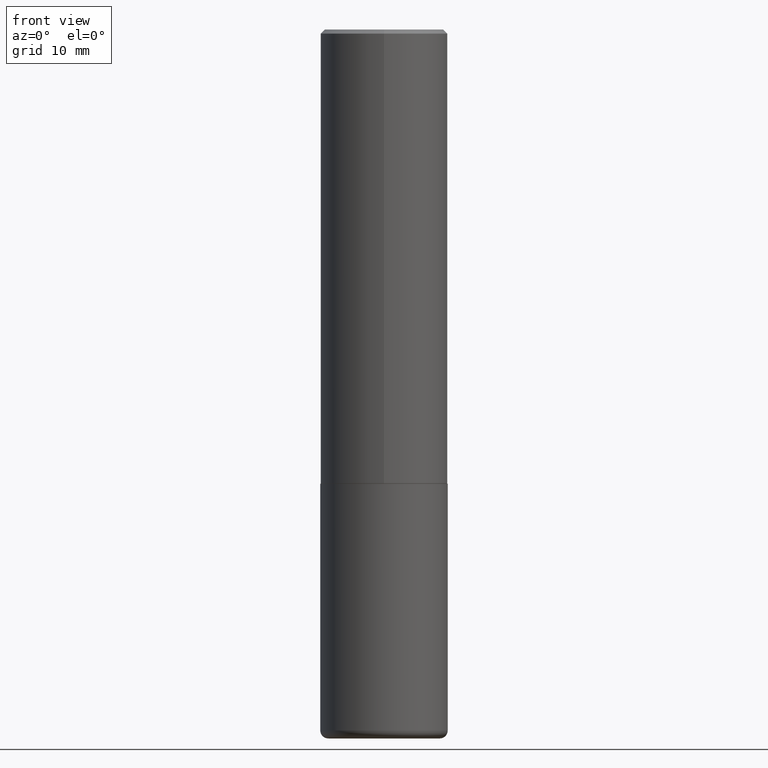
[diagram: clean part render]
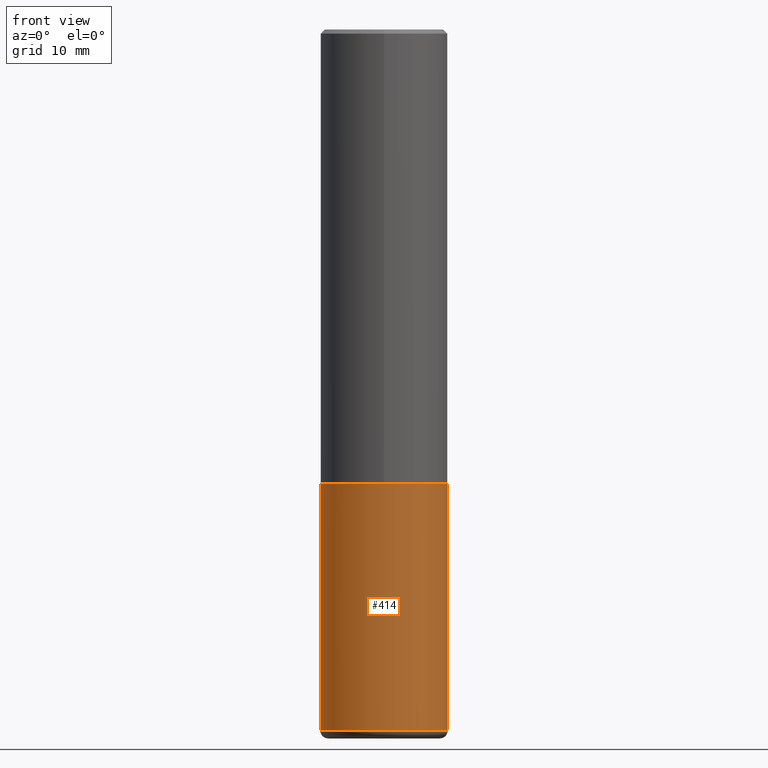
[diagram: same view with one face highlighted and labeled with its STEP entity id]
A machine part, front view. The second image highlights one B-rep face of the part: STEP entity #414.
In plain terms, the highlighted cylindrical surface (partial cylindrical patch) has radius 7.9997 mm, axis along (-0, 0, 1).
Its self-contained STEP definition (entity closure, byte-faithful):
#2 = CARTESIAN_POINT ( 'NONE',  ( -0.3149500000000000077, -7.727880839183554507E-15, -2.244099999999999540 ) ) ;
#19 = EDGE_CURVE ( 'NONE', #197, #352, #405, .T. ) ;
#28 = EDGE_CURVE ( 'NONE', #244, #297, #83, .T. ) ;
#59 = EDGE_CURVE ( 'NONE', #197, #244, #347, .T. ) ;
#63 = DIRECTION ( 'NONE',  ( 1.000000000000000000, -6.982962677686266711E-15, 0.000000000000000000 ) ) ;
#66 = CYLINDRICAL_SURFACE ( 'NONE', #395, 0.3149500000000000077 ) ;
#72 = CARTESIAN_POINT ( 'NONE',  ( 0.000000000000000000, 0.000000000000000000, 0.000000000000000000 ) ) ;
#76 = DIRECTION ( 'NONE',  ( -2.445468806185136877E-29, 3.491481338843145188E-15, 1.000000000000000000 ) ) ;
#83 = LINE ( 'NONE', #145, #361 ) ;
#89 = CARTESIAN_POINT ( 'NONE',  ( -0.3149500000000000077, -9.858382752145642660E-15, -3.464500000000000135 ) ) ;
#93 = ORIENTED_EDGE ( 'NONE', *, *, #28, .T. ) ;
#100 = CARTESIAN_POINT ( 'NONE',  ( 0.3149500000000000077, -1.003451736783519063E-14, -2.244099999999999540 ) ) ;
#122 = CARTESIAN_POINT ( 'NONE',  ( 8.472326679028406000E-29, -1.209623709842207864E-14, -3.464500000000000135 ) ) ;
#145 = CARTESIAN_POINT ( 'NONE',  ( 0.3149500000000000077, -2.199284095337289871E-15, 1.535751875536930130E-29 ) ) ;
#147 = DIRECTION ( 'NONE',  ( -2.445468806185136597E-29, 3.491481338843145583E-15, 1.000000000000000000 ) ) ;
#151 = ORIENTED_EDGE ( 'NONE', *, *, #59, .T. ) ;
#156 = VECTOR ( 'NONE', #398, 39.37007874015748143 ) ;
#170 = ORIENTED_EDGE ( 'NONE', *, *, #350, .F. ) ;
#171 = FACE_OUTER_BOUND ( 'NONE', #280, .T. ) ;
#197 = VERTEX_POINT ( 'NONE', #89 ) ;
#202 = DIRECTION ( 'NONE',  ( 1.000000000000000000, -6.982962677686266711E-15, 4.876176775795936353E-29 ) ) ;
#222 = CIRCLE ( 'NONE', #312, 0.3149500000000000077 ) ;
#237 = DIRECTION ( 'NONE',  ( -2.445468806185136597E-29, 3.491481338843145583E-15, 1.000000000000000000 ) ) ;
#244 = VERTEX_POINT ( 'NONE', #253 ) ;
#253 = CARTESIAN_POINT ( 'NONE',  ( 0.3149500000000000077, -1.429552119375937009E-14, -3.464500000000000135 ) ) ;
#270 = AXIS2_PLACEMENT_3D ( 'NONE', #122, #147, #400 ) ;
#280 = EDGE_LOOP ( 'NONE', ( #368, #151, #93, #170 ) ) ;
#297 = VERTEX_POINT ( 'NONE', #100 ) ;
#312 = AXIS2_PLACEMENT_3D ( 'NONE', #322, #357, #63 ) ;
#322 = CARTESIAN_POINT ( 'NONE',  ( 5.487876547960064752E-29, -7.835233272497900762E-15, -2.244099999999999540 ) ) ;
#347 = CIRCLE ( 'NONE', #270, 0.3149500000000000077 ) ;
#350 = EDGE_CURVE ( 'NONE', #352, #297, #222, .T. ) ;
#352 = VERTEX_POINT ( 'NONE', #2 ) ;
#357 = DIRECTION ( 'NONE',  ( -2.445468806185136597E-29, 3.491481338843145583E-15, 1.000000000000000000 ) ) ;
#361 = VECTOR ( 'NONE', #76, 39.37007874015748143 ) ;
#368 = ORIENTED_EDGE ( 'NONE', *, *, #19, .F. ) ;
#373 = CARTESIAN_POINT ( 'NONE',  ( -0.3149500000000000077, 2.237854346276435590E-15, -1.549218606675782676E-29 ) ) ;
#395 = AXIS2_PLACEMENT_3D ( 'NONE', #72, #237, #202 ) ;
#398 = DIRECTION ( 'NONE',  ( -2.445468806185136877E-29, 3.491481338843145188E-15, 1.000000000000000000 ) ) ;
#400 = DIRECTION ( 'NONE',  ( 1.000000000000000000, -6.982962677686269866E-15, 0.000000000000000000 ) ) ;
#405 = LINE ( 'NONE', #373, #156 ) ;
#414 = ADVANCED_FACE ( 'NONE', ( #171 ), #66, .T. ) ;